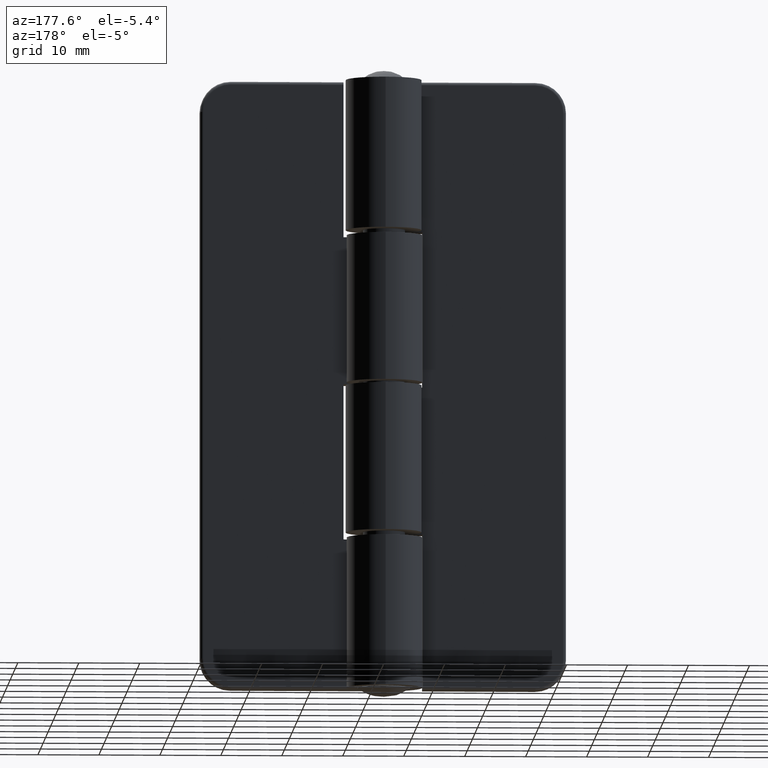
[diagram: clean part render]
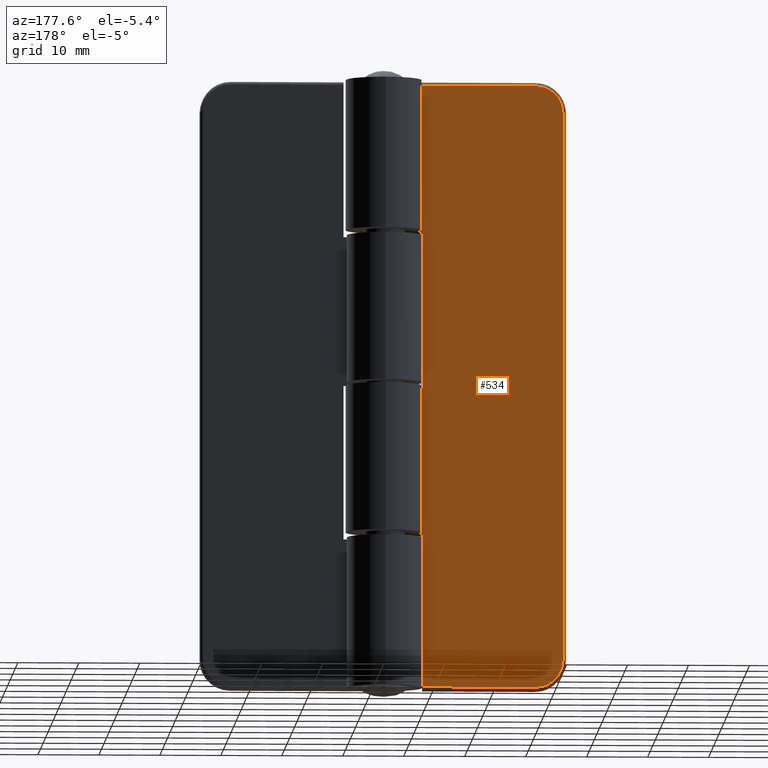
[diagram: same view with one face highlighted and labeled with its STEP entity id]
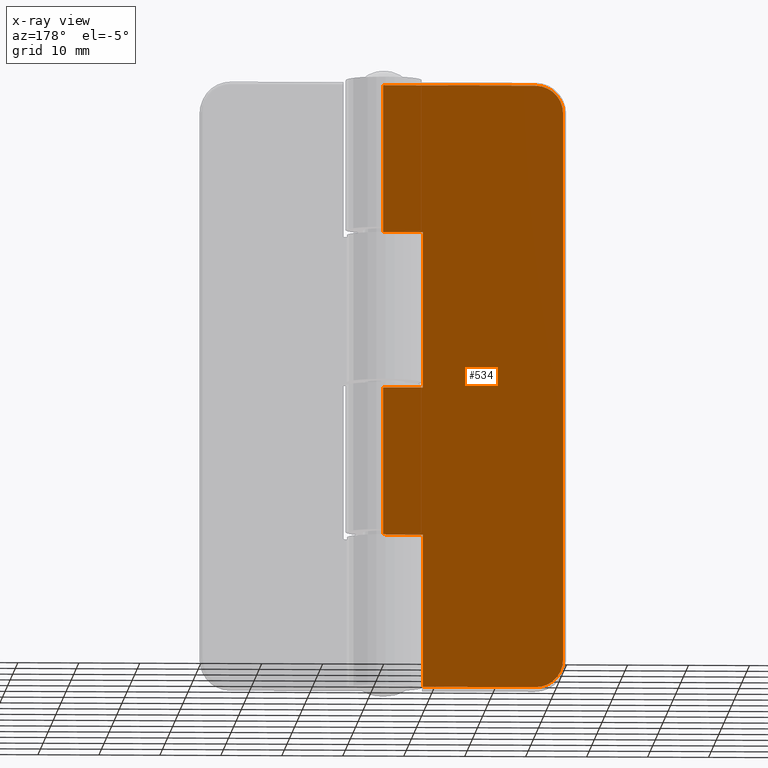
[diagram: x-ray of the same camera — body ghosted, the highlighted face saturated]
A machine part, auxiliary view. The second image highlights one B-rep face of the part: STEP entity #534.
The next image is the same camera in x-ray: the body ghosted, the highlighted face saturated — about 0% of this face is hidden behind the body in this view.
In plain terms, the highlighted planar face has unit normal (0, 1, 0).
Its self-contained STEP definition (entity closure, byte-faithful):
#47=PLANE('',#594);
#52=LINE('',#815,#93);
#54=LINE('',#827,#95);
#56=LINE('',#839,#97);
#66=LINE('',#868,#107);
#69=LINE('',#874,#110);
#72=LINE('',#887,#113);
#76=LINE('',#901,#117);
#79=LINE('',#907,#120);
#85=LINE('',#922,#126);
#89=LINE('',#931,#130);
#93=VECTOR('',#629,25.);
#95=VECTOR('',#643,90.);
#97=VECTOR('',#657,18.5);
#107=VECTOR('',#687,25.05);
#110=VECTOR('',#692,6.50000000000001);
#113=VECTOR('',#703,6.5);
#117=VECTOR('',#715,25.55);
#120=VECTOR('',#720,6.49999999999999);
#126=VECTOR('',#736,24.2);
#130=VECTOR('',#750,24.2);
#167=FACE_OUTER_BOUND('',#199,.T.);
#199=EDGE_LOOP('',(#474,#475,#476,#477,#478,#479,#480,#481,#482,#483,#484,
#485));
#219=CIRCLE('',#556,4.5);
#223=CIRCLE('',#562,4.5);
#246=VERTEX_POINT('',#805);
#248=VERTEX_POINT('',#811);
#250=VERTEX_POINT('',#817);
#252=VERTEX_POINT('',#823);
#254=VERTEX_POINT('',#829);
#256=VERTEX_POINT('',#835);
#266=VERTEX_POINT('',#867);
#268=VERTEX_POINT('',#873);
#273=VERTEX_POINT('',#885);
#274=VERTEX_POINT('',#886);
#280=VERTEX_POINT('',#900);
#282=VERTEX_POINT('',#906);
#298=EDGE_CURVE('',#246,#248,#52,.T.);
#301=EDGE_CURVE('',#248,#250,#219,.T.);
#304=EDGE_CURVE('',#250,#252,#54,.T.);
#307=EDGE_CURVE('',#252,#254,#223,.T.);
#310=EDGE_CURVE('',#254,#256,#56,.T.);
#324=EDGE_CURVE('',#266,#256,#66,.T.);
#327=EDGE_CURVE('',#268,#266,#69,.T.);
#333=EDGE_CURVE('',#273,#274,#72,.T.);
#340=EDGE_CURVE('',#280,#273,#76,.T.);
#343=EDGE_CURVE('',#282,#280,#79,.T.);
#352=EDGE_CURVE('',#246,#282,#85,.T.);
#356=EDGE_CURVE('',#274,#268,#89,.T.);
#474=ORIENTED_EDGE('',*,*,#298,.F.);
#475=ORIENTED_EDGE('',*,*,#352,.T.);
#476=ORIENTED_EDGE('',*,*,#343,.T.);
#477=ORIENTED_EDGE('',*,*,#340,.T.);
#478=ORIENTED_EDGE('',*,*,#333,.T.);
#479=ORIENTED_EDGE('',*,*,#356,.T.);
#480=ORIENTED_EDGE('',*,*,#327,.T.);
#481=ORIENTED_EDGE('',*,*,#324,.T.);
#482=ORIENTED_EDGE('',*,*,#310,.F.);
#483=ORIENTED_EDGE('',*,*,#307,.F.);
#484=ORIENTED_EDGE('',*,*,#304,.F.);
#485=ORIENTED_EDGE('',*,*,#301,.F.);
#534=ADVANCED_FACE('',(#167),#47,.T.);
#556=AXIS2_PLACEMENT_3D('',#821,#636,#637);
#562=AXIS2_PLACEMENT_3D('',#833,#650,#651);
#594=AXIS2_PLACEMENT_3D('',#930,#748,#749);
#629=DIRECTION('',(-1.,0.,0.));
#636=DIRECTION('center_axis',(0.,-1.,0.));
#637=DIRECTION('ref_axis',(-0.707106781186548,0.,0.707106781186547));
#643=DIRECTION('',(0.,0.,-1.));
#650=DIRECTION('center_axis',(0.,-1.,0.));
#651=DIRECTION('ref_axis',(-0.707106781186548,0.,-0.707106781186547));
#657=DIRECTION('',(1.,0.,0.));
#687=DIRECTION('',(-2.61228946970625E-16,0.,-1.));
#692=DIRECTION('',(-1.,0.,0.));
#703=DIRECTION('',(1.,0.,0.));
#715=DIRECTION('',(-3.04170691678125E-16,0.,-1.));
#720=DIRECTION('',(-1.,0.,0.));
#736=DIRECTION('',(0.,0.,-1.));
#748=DIRECTION('center_axis',(0.,1.,0.));
#749=DIRECTION('ref_axis',(1.,0.,0.));
#750=DIRECTION('',(0.,0.,-1.));
#805=CARTESIAN_POINT('',(-4.30859436909641E-18,3.,-0.5));
#811=CARTESIAN_POINT('',(-25.,3.,-0.5));
#815=CARTESIAN_POINT('',(-14.8931358470727,3.,-0.5));
#817=CARTESIAN_POINT('',(-29.5,3.,-5.));
#821=CARTESIAN_POINT('Origin',(-25.,3.,-5.));
#823=CARTESIAN_POINT('',(-29.5,3.,-95.));
#827=CARTESIAN_POINT('',(-29.5,3.,0.));
#829=CARTESIAN_POINT('',(-25.,3.,-99.5));
#833=CARTESIAN_POINT('Origin',(-25.,3.,-95.));
#835=CARTESIAN_POINT('',(-6.50000000000002,3.,-99.5));
#839=CARTESIAN_POINT('',(-14.8931358470727,3.,-99.5));
#867=CARTESIAN_POINT('',(-6.50000000000001,3.,-74.45));
#868=CARTESIAN_POINT('',(-6.50000000000001,3.,-54.225));
#873=CARTESIAN_POINT('',(-4.30859436909641E-18,3.,-74.45));
#874=CARTESIAN_POINT('',(-18.25,3.,-74.45));
#885=CARTESIAN_POINT('',(-6.5,3.,-50.25));
#886=CARTESIAN_POINT('',(-4.30859436909641E-18,3.,-50.25));
#887=CARTESIAN_POINT('',(-8.25,3.,-50.25));
#900=CARTESIAN_POINT('',(-6.49999999999999,3.,-24.7));
#901=CARTESIAN_POINT('',(-6.5,3.,-25.125));
#906=CARTESIAN_POINT('',(-4.30859436909641E-18,3.,-24.7));
#907=CARTESIAN_POINT('',(-18.25,3.,-24.7));
#922=CARTESIAN_POINT('',(-4.30859436909641E-18,3.,0.));
#930=CARTESIAN_POINT('Origin',(-30.,3.,0.));
#931=CARTESIAN_POINT('',(-4.30859436909641E-18,3.,0.));